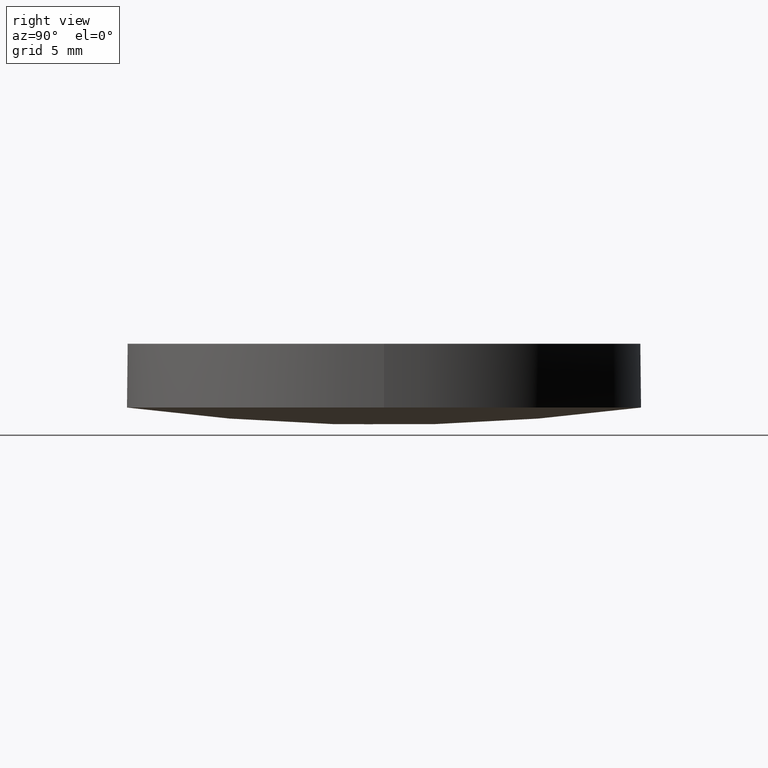
[diagram: clean part render]
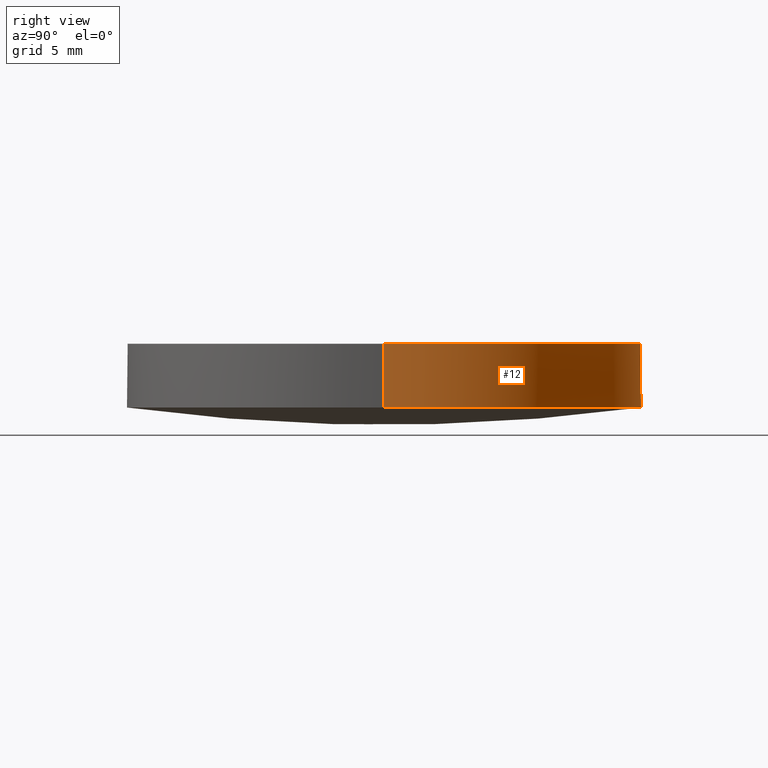
[diagram: same view with one face highlighted and labeled with its STEP entity id]
A machine part, right view. The second image highlights one B-rep face of the part: STEP entity #12.
In plain terms, the highlighted cylindrical surface (partial cylindrical patch) has radius 12.7 mm, axis along (0, 0, 1).
Its self-contained STEP definition (entity closure, byte-faithful):
#2 = DIRECTION ( 'NONE',  ( 0.0000000000000000000, 0.0000000000000000000, 1.000000000000000000 ) ) ;
#3 = AXIS2_PLACEMENT_3D ( 'NONE', #22, #218, #43 ) ;
#5 = DIRECTION ( 'NONE',  ( -0.0000000000000000000, -0.0000000000000000000, -1.000000000000000000 ) ) ;
#6 = LINE ( 'NONE', #81, #196 ) ;
#8 = EDGE_CURVE ( 'NONE', #181, #89, #136, .T. ) ;
#9 = ORIENTED_EDGE ( 'NONE', *, *, #113, .T. ) ;
#12 = ADVANCED_FACE ( 'NONE', ( #226 ), #111, .T. ) ;
#21 = AXIS2_PLACEMENT_3D ( 'NONE', #199, #182, #203 ) ;
#22 = CARTESIAN_POINT ( 'NONE',  ( 4.996003610813200500E-016, 2.442490654175340100E-015, 0.8508239756196249700 ) ) ;
#35 = AXIS2_PLACEMENT_3D ( 'NONE', #166, #60, #80 ) ;
#40 = EDGE_CURVE ( 'NONE', #232, #62, #219, .T. ) ;
#43 = DIRECTION ( 'NONE',  ( 1.000000000000000000, 0.0000000000000000000, 0.0000000000000000000 ) ) ;
#60 = DIRECTION ( 'NONE',  ( 0.0000000000000000000, 0.0000000000000000000, 1.000000000000000000 ) ) ;
#62 = VERTEX_POINT ( 'NONE', #95 ) ;
#63 = AXIS2_PLACEMENT_3D ( 'NONE', #84, #5, #101 ) ;
#72 = ORIENTED_EDGE ( 'NONE', *, *, #110, .F. ) ;
#80 = DIRECTION ( 'NONE',  ( 1.000000000000000000, 0.0000000000000000000, 0.0000000000000000000 ) ) ;
#81 = CARTESIAN_POINT ( 'NONE',  ( -12.69999999999999900, 3.997792089092478900E-015, 0.8508239756196249700 ) ) ;
#84 = CARTESIAN_POINT ( 'NONE',  ( 4.996003610813200500E-016, 2.442490654175340100E-015, 0.8508239756196249700 ) ) ;
#85 = CARTESIAN_POINT ( 'NONE',  ( -12.69999999999999900, 3.997792089092478900E-015, 4.000000000000000000 ) ) ;
#89 = VERTEX_POINT ( 'NONE', #102 ) ;
#95 = CARTESIAN_POINT ( 'NONE',  ( 12.69999999999999900, 2.442490654175340100E-015, 4.000000000000000000 ) ) ;
#101 = DIRECTION ( 'NONE',  ( 1.000000000000000000, 0.0000000000000000000, 0.0000000000000000000 ) ) ;
#102 = CARTESIAN_POINT ( 'NONE',  ( 12.69999999999999900, 2.442490654175340100E-015, 0.8508239756196249700 ) ) ;
#108 = VERTEX_POINT ( 'NONE', #119 ) ;
#110 = EDGE_CURVE ( 'NONE', #108, #181, #130, .T. ) ;
#111 = CYLINDRICAL_SURFACE ( 'NONE', #35, 12.69999999999999900 ) ;
#113 = EDGE_CURVE ( 'NONE', #108, #232, #6, .T. ) ;
#119 = CARTESIAN_POINT ( 'NONE',  ( -12.69999999999999900, 3.997792089092478900E-015, 0.8508239756196249700 ) ) ;
#128 = ORIENTED_EDGE ( 'NONE', *, *, #8, .F. ) ;
#130 = CIRCLE ( 'NONE', #63, 12.69999999999999900 ) ;
#134 = ORIENTED_EDGE ( 'NONE', *, *, #40, .T. ) ;
#136 = CIRCLE ( 'NONE', #3, 12.69999999999999900 ) ;
#137 = EDGE_CURVE ( 'NONE', #89, #62, #217, .T. ) ;
#143 = ORIENTED_EDGE ( 'NONE', *, *, #137, .F. ) ;
#151 = VECTOR ( 'NONE', #190, 1000.000000000000000 ) ;
#158 = CARTESIAN_POINT ( 'NONE',  ( 3.621158817093093200E-014, 12.69999999999999600, 0.8508239756196261900 ) ) ;
#166 = CARTESIAN_POINT ( 'NONE',  ( 4.996003610813200500E-016, 2.442490654175340100E-015, 0.8508239756196249700 ) ) ;
#172 = CARTESIAN_POINT ( 'NONE',  ( 12.69999999999999900, 2.442490654175340100E-015, 0.8508239756196249700 ) ) ;
#181 = VERTEX_POINT ( 'NONE', #158 ) ;
#182 = DIRECTION ( 'NONE',  ( -0.0000000000000000000, -0.0000000000000000000, -1.000000000000000000 ) ) ;
#184 = EDGE_LOOP ( 'NONE', ( #72, #9, #134, #143, #128 ) ) ;
#190 = DIRECTION ( 'NONE',  ( 0.0000000000000000000, 0.0000000000000000000, 1.000000000000000000 ) ) ;
#196 = VECTOR ( 'NONE', #2, 1000.000000000000000 ) ;
#199 = CARTESIAN_POINT ( 'NONE',  ( 4.996003610813200500E-016, 2.442490654175340100E-015, 4.000000000000000000 ) ) ;
#203 = DIRECTION ( 'NONE',  ( 1.000000000000000000, 0.0000000000000000000, 0.0000000000000000000 ) ) ;
#217 = LINE ( 'NONE', #172, #151 ) ;
#218 = DIRECTION ( 'NONE',  ( -0.0000000000000000000, -0.0000000000000000000, -1.000000000000000000 ) ) ;
#219 = CIRCLE ( 'NONE', #21, 12.69999999999999900 ) ;
#226 = FACE_OUTER_BOUND ( 'NONE', #184, .T. ) ;
#232 = VERTEX_POINT ( 'NONE', #85 ) ;